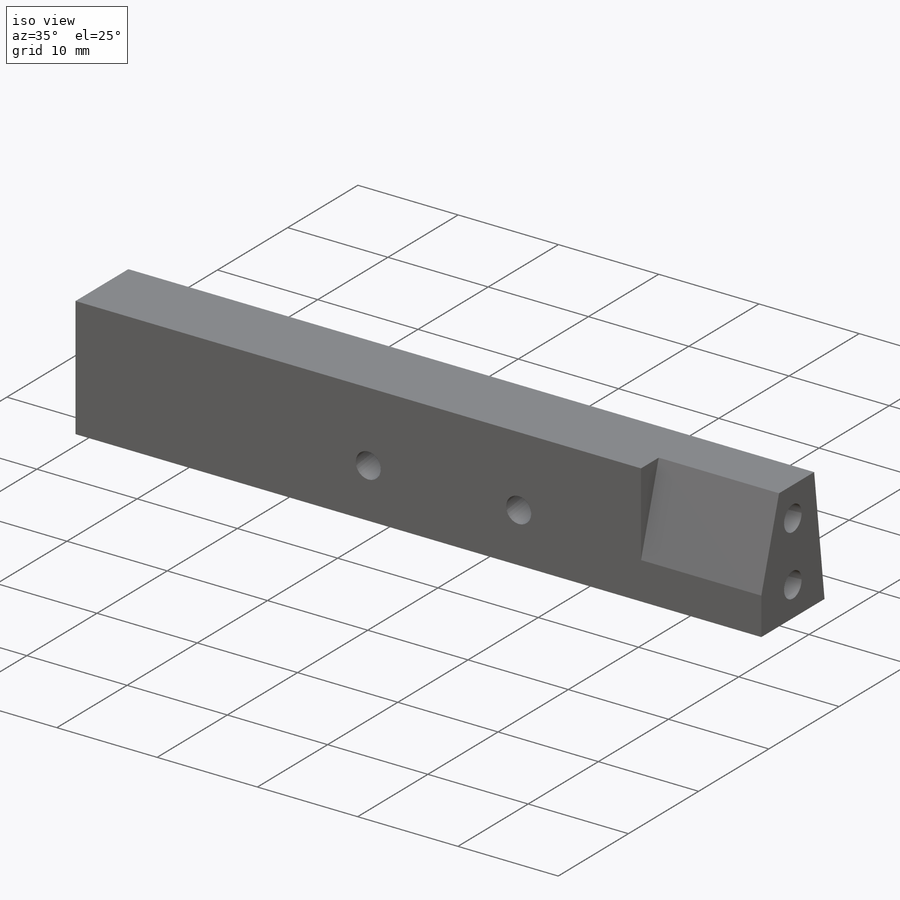
[diagram: iso view]
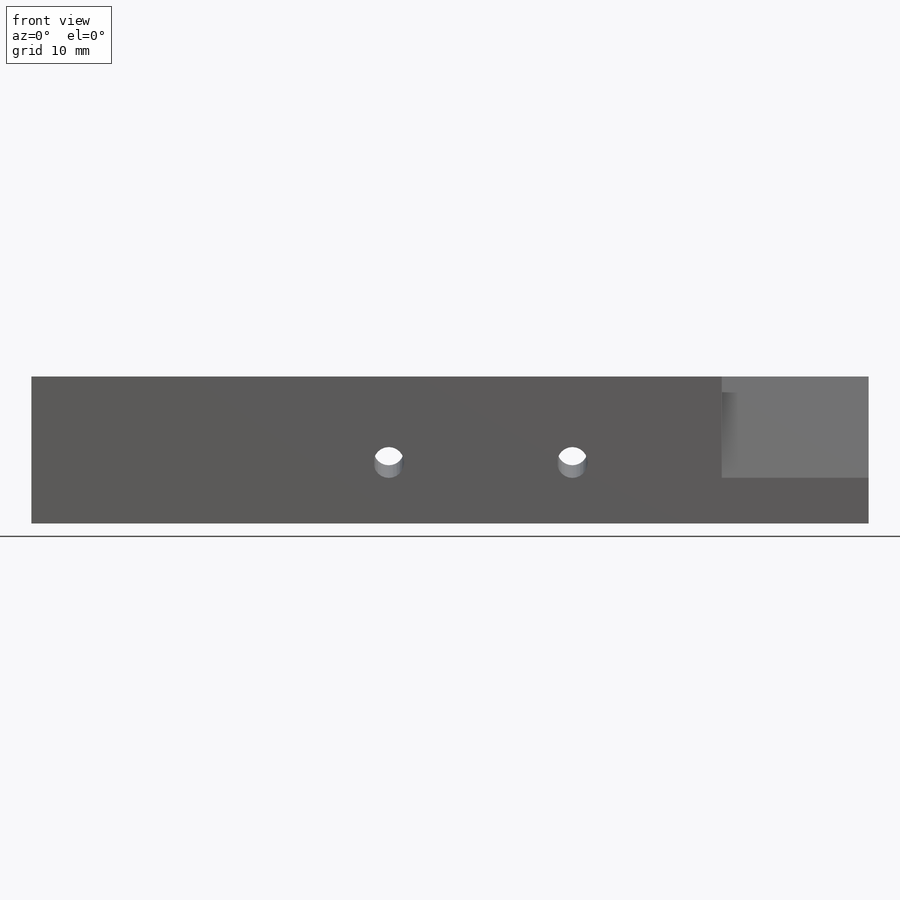
[diagram: front view]
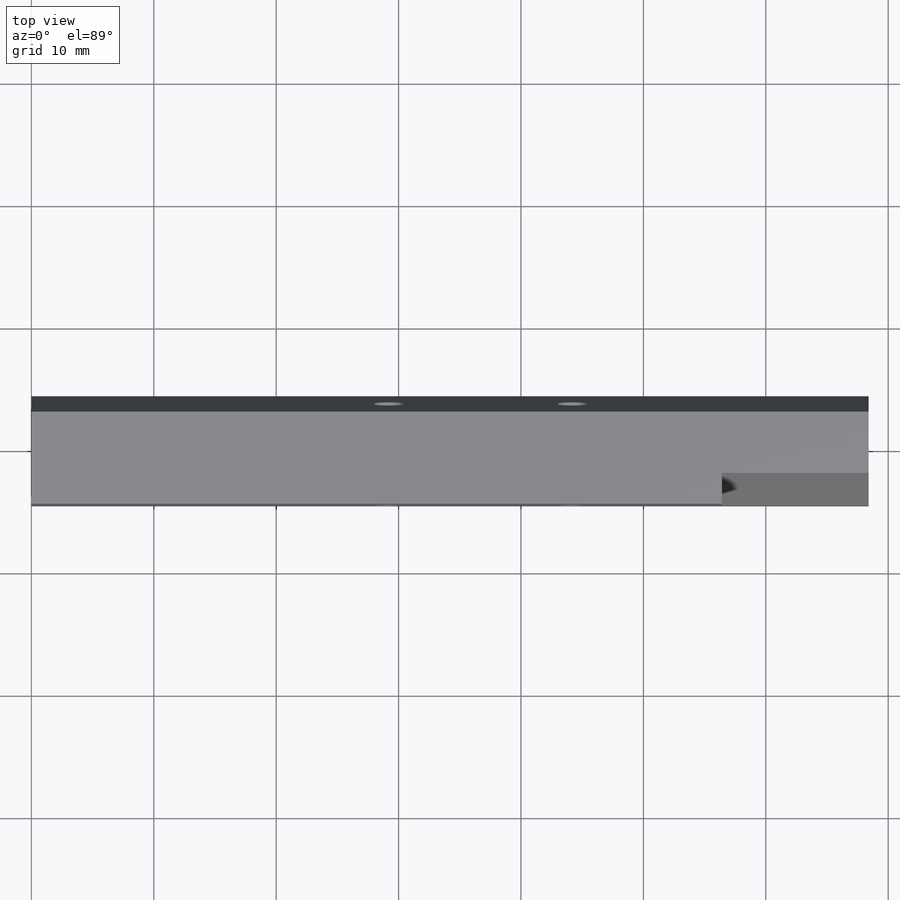
[diagram: top view]
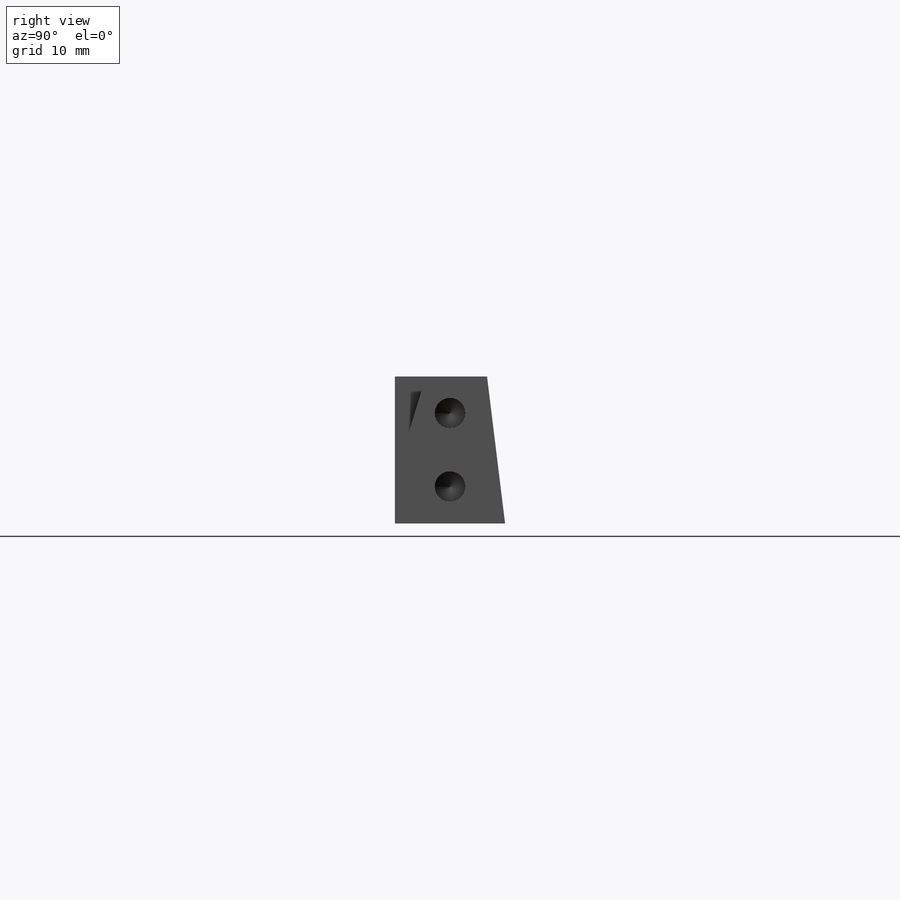
[diagram: right view]
SOLIDWORKS PART (.sldprt)
format: sldprt  version: not decoded by parser v0  size: 299,520 bytes
history: native  units: mm
features: sketch x11, thread x6, plane x3, hole x3, material x1, extrude x1, cut_extrude x1 (+9 scaffold rows collapsed)
feature tree (35):
  scaffold x9  (default folders/planes/origin — collapsed)
  material  "Material <não especificado>"
  plane  "Plano frontal"
  plane  "Plano superior"
  plane  "Plano direito"
  sketch  "Esboço1"  dims[c1.D1=12.0mm c1.D2=9.0mm c1.D3=12.0mm c2.D3=7.0deg]
  extrude  "Ressalto-extrusão1"  Depth=68.4mm
  sketch  "Esboço2"  dims[c1.D2=6.0mm c2.D2=17.0deg c2.D3=5.0mm c2.D1=0.0mm]
  cut_extrude  "Corte-extrusão1"  Depth=12mm
  sketch  "Esboço3"  dims[D3=3.0mm D1=3.0mm D2=3.0mm]
  hole  "Furo roscado de M3x0.51"  [1 undecoded]
  sketch  "Esboço5"
  thread  "Rosca de furo1"  Diameter=6mm  [1 undecoded]
  thread  "Rosca de furo2"  Diameter=6mm  [1 undecoded]
  sketch  "Esboço4"  dims[hole-wizard template sketch: 50 standard entries collapsed; hole parameters above]
  sketch  "Esboço6"  dims[D1=3.0mm D2=3.0mm]
  hole  "Furo roscado de M3x0.52"  Diameter=2.5mm Depth=8.5mm
  sketch  "Esboço8"
  sketch  "Esboço7"  dims[hole-wizard template sketch: 50 standard entries collapsed; hole parameters above]
  thread  "Rosca de furo3"  Diameter=6mm  [1 undecoded]
  thread  "Rosca de furo4"  Diameter=6mm  [1 undecoded]
  sketch  "Esboço9"  dims[D1=0.0mm D2=0.0mm]
  hole  "Furo roscado de M3x0.53"  Diameter=2.5mm Depth=8.326061mm
  sketch  "Esboço11"
  sketch  "Esboço12"  dims[hole-wizard template sketch: 60 standard entries collapsed; hole parameters kept: c18.Thru Tap Drill Depth=~8.326061mm]
  thread  "Rosca de furo5"  Diameter=3mm  [1 undecoded]
  thread  "Rosca de furo6"  Diameter=3mm  [1 undecoded]
decode coverage: 18 of 22 modeling features carry decoded parameters
note: ~ marks probable driven/reference dimensions
note: 7 parameter values undecoded
note: suppression state not decoded; provenance and decode notes live in map.json
